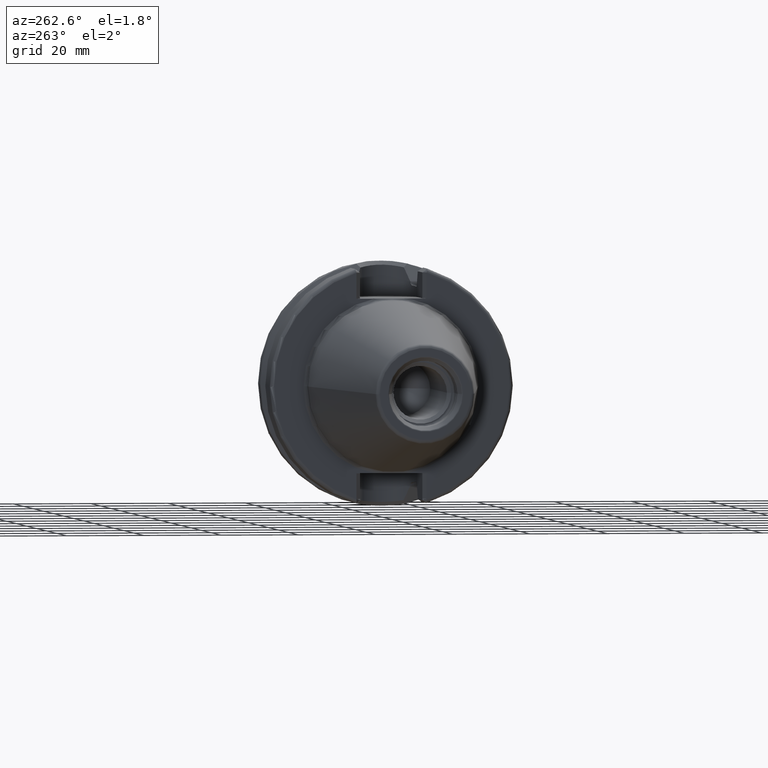
[diagram: clean part render]
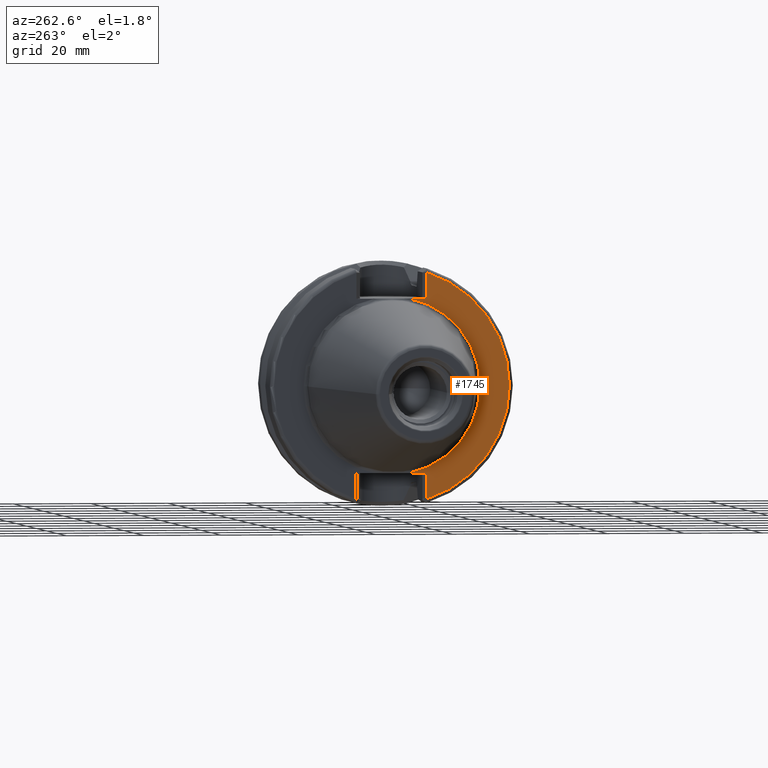
[diagram: same view with one face highlighted and labeled with its STEP entity id]
A machine part, auxiliary view. The second image highlights one B-rep face of the part: STEP entity #1745.
In plain terms, the highlighted planar face has unit normal (1, 0, 0).
Its self-contained STEP definition (entity closure, byte-faithful):
#111=CARTESIAN_POINT('',(2.E0,0.E0,0.E0));
#112=DIRECTION('',(-1.E0,0.E0,0.E0));
#113=DIRECTION('',(0.E0,-1.918678763451E-1,-9.814207650273E-1));
#114=AXIS2_PLACEMENT_3D('',#111,#112,#113);
#135=DIRECTION('',(-2.137863157207E-6,2.138092595446E-6,-9.999999999954E-1));
#136=VECTOR('',#135,6.649288203879E0);
#137=CARTESIAN_POINT('',(2.E0,-9.095E0,-2.245E1));
#138=LINE('',#137,#136);
#139=DIRECTION('',(4.462834027234E-6,-4.463945838797E-6,-9.999999999801E-1));
#140=VECTOR('',#139,6.649296399172E0);
#141=CARTESIAN_POINT('',(1.999970325294E0,-9.094970317901E0,2.909929639904E1));
#142=LINE('',#141,#140);
#597=CARTESIAN_POINT('',(1.999985784732E0,-9.094985783206E0,-2.909928820385E1));
#608=CARTESIAN_POINT('',(2.E0,0.E0,0.E0));
#609=DIRECTION('',(-1.E0,0.E0,0.E0));
#610=DIRECTION('',(0.E0,-2.983190208830E-1,-9.544662182495E-1));
#611=AXIS2_PLACEMENT_3D('',#608,#609,#610);
#684=DIRECTION('',(0.E0,1.E0,0.E0));
#685=VECTOR('',#684,4.706022328605E0);
#686=CARTESIAN_POINT('',(2.E0,-9.095E0,2.245E1));
#687=LINE('',#686,#685);
#725=CARTESIAN_POINT('',(2.E0,0.E0,0.E0));
#726=DIRECTION('',(1.E0,0.E0,0.E0));
#727=DIRECTION('',(0.E0,-1.918678763451E-1,9.814207650273E-1));
#728=AXIS2_PLACEMENT_3D('',#725,#726,#727);
#750=DIRECTION('',(0.E0,-1.E0,0.E0));
#751=VECTOR('',#750,4.706022328605E0);
#752=CARTESIAN_POINT('',(2.E0,-4.388977671395E0,-2.245E1));
#753=LINE('',#752,#751);
#1374=CARTESIAN_POINT('',(2.E0,-2.2875E1,0.E0));
#1376=VERTEX_POINT('',#1374);
#1440=CARTESIAN_POINT('',(2.E0,-4.388977671395E0,2.245E1));
#1441=VERTEX_POINT('',#1440);
#1448=CARTESIAN_POINT('',(2.E0,-4.388977671395E0,-2.245E1));
#1449=VERTEX_POINT('',#1448);
#1478=CARTESIAN_POINT('',(1.999970325294E0,-9.094970317901E0,2.909929639904E1));
#1479=CARTESIAN_POINT('',(2.E0,-9.095E0,2.245E1));
#1480=VERTEX_POINT('',#1478);
#1481=VERTEX_POINT('',#1479);
#1503=VERTEX_POINT('',#597);
#1505=CARTESIAN_POINT('',(2.E0,-9.095E0,-2.245E1));
#1506=VERTEX_POINT('',#1505);
#1725=CARTESIAN_POINT('',(2.E0,0.E0,0.E0));
#1726=DIRECTION('',(1.E0,0.E0,0.E0));
#1727=DIRECTION('',(0.E0,-1.E0,0.E0));
#1728=AXIS2_PLACEMENT_3D('',#1725,#1726,#1727);
#1729=PLANE('',#1728);
#1731=ORIENTED_EDGE('',*,*,#1730,.F.);
#1733=ORIENTED_EDGE('',*,*,#1732,.F.);
#1734=ORIENTED_EDGE('',*,*,#1697,.T.);
#1736=ORIENTED_EDGE('',*,*,#1735,.F.);
#1738=ORIENTED_EDGE('',*,*,#1737,.F.);
#1740=ORIENTED_EDGE('',*,*,#1739,.F.);
#1742=ORIENTED_EDGE('',*,*,#1741,.F.);
#1743=EDGE_LOOP('',(#1731,#1733,#1734,#1736,#1738,#1740,#1742));
#1744=FACE_OUTER_BOUND('',#1743,.F.);
#1745=ADVANCED_FACE('',(#1744),#1729,.F.);
#115=CIRCLE('',#114,2.2875E1);
#612=CIRCLE('',#611,3.04875E1);
#729=CIRCLE('',#728,2.2875E1);
#1697=EDGE_CURVE('',#1449,#1376,#115,.T.);
#1730=EDGE_CURVE('',#1506,#1503,#138,.T.);
#1732=EDGE_CURVE('',#1449,#1506,#753,.T.);
#1735=EDGE_CURVE('',#1441,#1376,#729,.T.);
#1737=EDGE_CURVE('',#1481,#1441,#687,.T.);
#1739=EDGE_CURVE('',#1480,#1481,#142,.T.);
#1741=EDGE_CURVE('',#1503,#1480,#612,.T.);